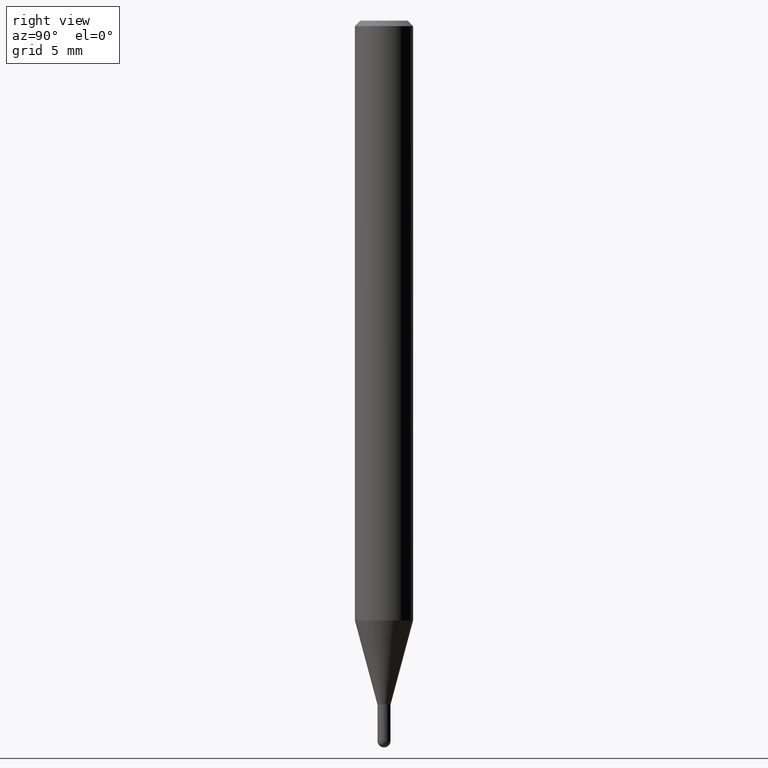
[diagram: clean part render]
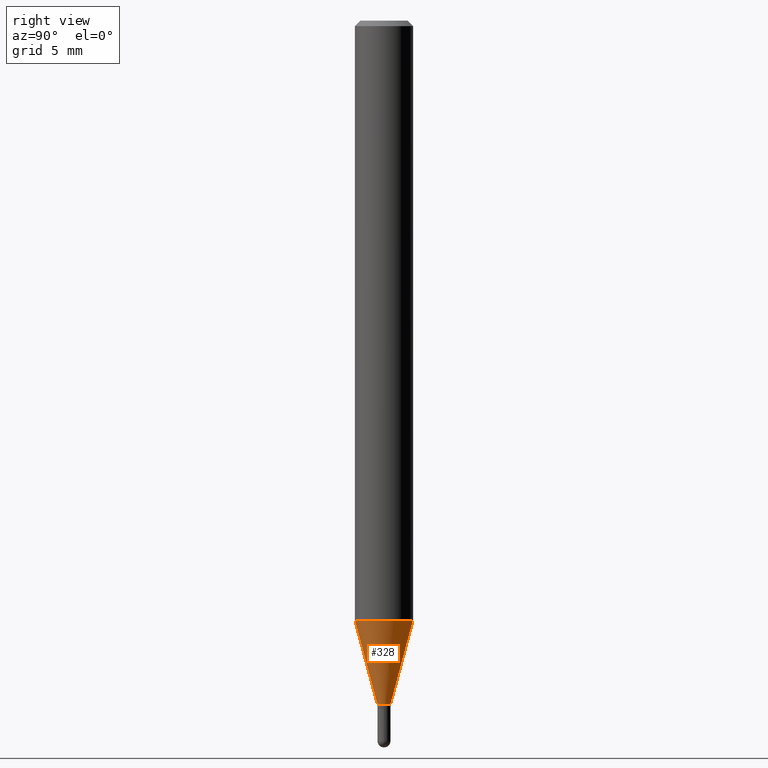
[diagram: same view with one face highlighted and labeled with its STEP entity id]
A machine part, right view. The second image highlights one B-rep face of the part: STEP entity #328.
In plain terms, the highlighted conical surface has half-angle 15 deg.
Its self-contained STEP definition (entity closure, byte-faithful):
#12 = AXIS2_PLACEMENT_3D ( 'NONE', #387, #75, #33 ) ;
#16 = LINE ( 'NONE', #411, #176 ) ;
#33 = DIRECTION ( 'NONE',  ( -6.982962677686266711E-15, -1.000000000000000000, 0.000000000000000000 ) ) ;
#75 = DIRECTION ( 'NONE',  ( -2.445455832011205727E-29, 3.491499918598658860E-15, 1.000000000000000000 ) ) ;
#82 = CARTESIAN_POINT ( 'NONE',  ( 5.595524044111183434E-16, 0.07874999999999431066, -1.624658298197920070 ) ) ;
#88 = DIRECTION ( 'NONE',  ( -2.445455832011205727E-29, 3.491499918598658860E-15, 1.000000000000000000 ) ) ;
#91 = CIRCLE ( 'NONE', #127, 0.07875000000000000056 ) ;
#100 = CONICAL_SURFACE ( 'NONE', #12, 0.01769999999999965351, 0.2617993877991506846 ) ;
#127 = AXIS2_PLACEMENT_3D ( 'NONE', #278, #88, #438 ) ;
#134 = ORIENTED_EDGE ( 'NONE', *, *, #429, .T. ) ;
#143 = DIRECTION ( 'NONE',  ( -1.807323732225332900E-15, -0.2588190451025185745, 0.9659258262890689783 ) ) ;
#144 = DIRECTION ( 'NONE',  ( -2.445455832011205727E-29, 3.491499918598658860E-15, 1.000000000000000000 ) ) ;
#158 = AXIS2_PLACEMENT_3D ( 'NONE', #425, #144, #504 ) ;
#173 = ORIENTED_EDGE ( 'NONE', *, *, #185, .F. ) ;
#176 = VECTOR ( 'NONE', #181, 39.37007874015748143 ) ;
#181 = DIRECTION ( 'NONE',  ( 1.839019923739603076E-15, 0.2588190451025253469, 0.9659258262890670910 ) ) ;
#185 = EDGE_CURVE ( 'NONE', #512, #238, #91, .T. ) ;
#187 = CARTESIAN_POINT ( 'NONE',  ( -1.235984393949991886E-16, -0.01770000000000612403, -1.852500000000000036 ) ) ;
#237 = EDGE_LOOP ( 'NONE', ( #273, #134, #173, #316 ) ) ;
#238 = VERTEX_POINT ( 'NONE', #82 ) ;
#239 = CIRCLE ( 'NONE', #158, 0.01769999999999965351 ) ;
#242 = VERTEX_POINT ( 'NONE', #433 ) ;
#271 = VERTEX_POINT ( 'NONE', #392 ) ;
#273 = ORIENTED_EDGE ( 'NONE', *, *, #437, .T. ) ;
#278 = CARTESIAN_POINT ( 'NONE',  ( 3.973030110353503053E-29, -5.672494315908672324E-15, -1.624658298197919848 ) ) ;
#316 = ORIENTED_EDGE ( 'NONE', *, *, #495, .F. ) ;
#328 = ADVANCED_FACE ( 'NONE', ( #427 ), #100, .T. ) ;
#387 = CARTESIAN_POINT ( 'NONE',  ( 4.530206928800758471E-29, -6.468003599204014426E-15, -1.852500000000000036 ) ) ;
#388 = CARTESIAN_POINT ( 'NONE',  ( -5.499083108677539026E-16, -0.07875000000000567657, -1.624658298197919626 ) ) ;
#392 = CARTESIAN_POINT ( 'NONE',  ( -1.235984393949991886E-16, -0.01770000000000612403, -1.852500000000000036 ) ) ;
#411 = CARTESIAN_POINT ( 'NONE',  ( 1.257660642295805565E-16, 0.01769999999999318646, -1.852500000000000036 ) ) ;
#425 = CARTESIAN_POINT ( 'NONE',  ( 4.530206928800758471E-29, -6.468003599204014426E-15, -1.852500000000000036 ) ) ;
#427 = FACE_OUTER_BOUND ( 'NONE', #237, .T. ) ;
#429 = EDGE_CURVE ( 'NONE', #242, #238, #16, .T. ) ;
#433 = CARTESIAN_POINT ( 'NONE',  ( 3.426592343203496595E-16, 0.01769999999999318646, -1.852500000000000036 ) ) ;
#436 = VECTOR ( 'NONE', #143, 39.37007874015748143 ) ;
#437 = EDGE_CURVE ( 'NONE', #271, #242, #239, .T. ) ;
#438 = DIRECTION ( 'NONE',  ( -6.982962677686264344E-15, -1.000000000000000000, 3.469013325287953293E-15 ) ) ;
#495 = EDGE_CURVE ( 'NONE', #271, #512, #506, .T. ) ;
#504 = DIRECTION ( 'NONE',  ( -6.982962677686266711E-15, -1.000000000000000000, 0.000000000000000000 ) ) ;
#506 = LINE ( 'NONE', #187, #436 ) ;
#512 = VERTEX_POINT ( 'NONE', #388 ) ;